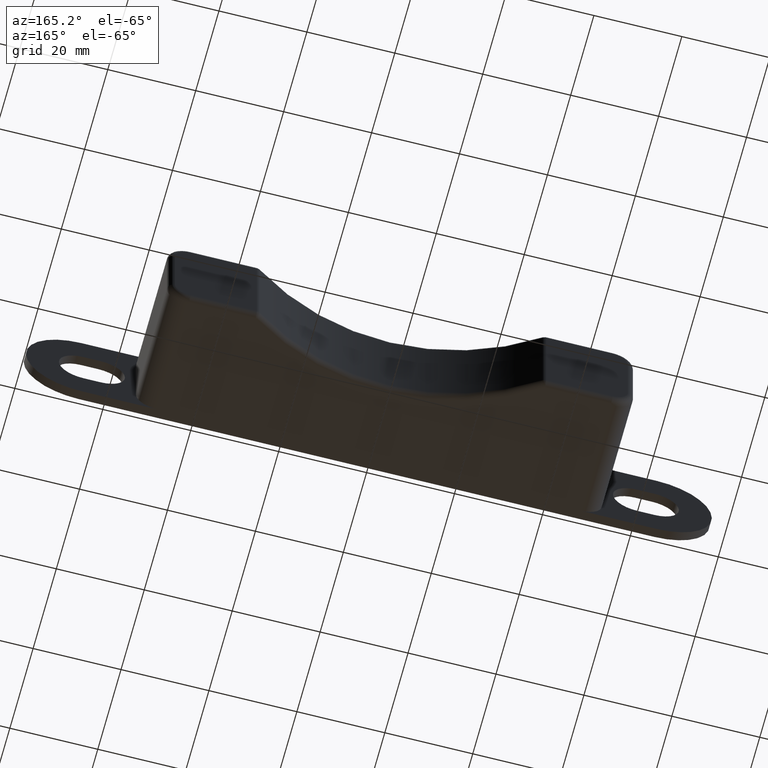
[diagram: clean part render]
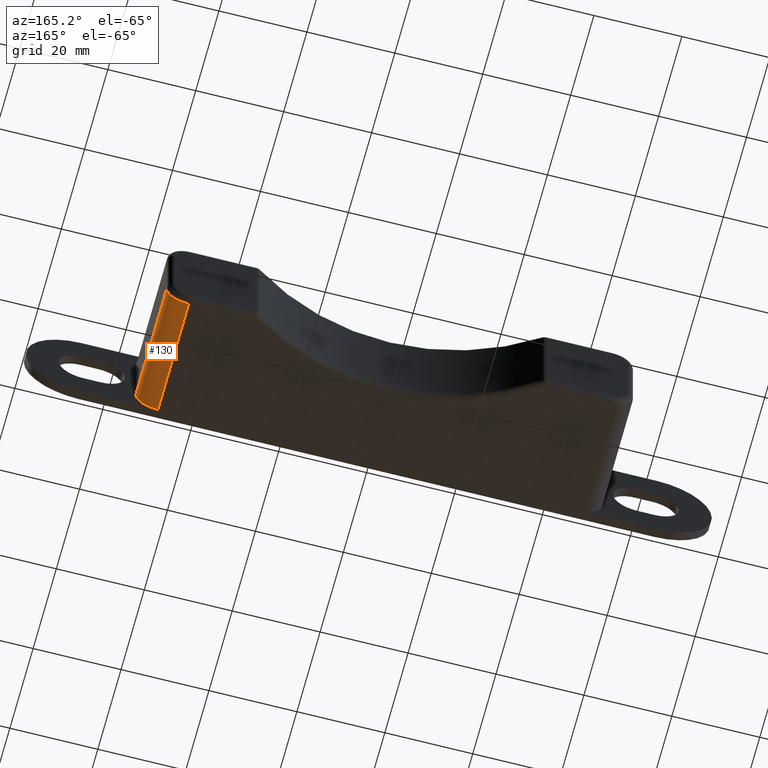
[diagram: same view with one face highlighted and labeled with its STEP entity id]
A machine part, auxiliary view. The second image highlights one B-rep face of the part: STEP entity #130.
In plain terms, the highlighted cylindrical surface (edge-blend (fillet) strip) has radius 5 mm, axis along (-0, -1, 0).
Its self-contained STEP definition (entity closure, byte-faithful):
#130 = ADVANCED_FACE( '', ( #884 ), #885, .T. );
#884 = FACE_OUTER_BOUND( '', #2192, .T. );
#885 = CYLINDRICAL_SURFACE( '', #2193, 5.00000000000000 );
#2192 = EDGE_LOOP( '', ( #4214, #4215, #4216, #4217 ) );
#2193 = AXIS2_PLACEMENT_3D( '', #4218, #4219, #4220 );
#4214 = ORIENTED_EDGE( '', *, *, #8773, .F. );
#4215 = ORIENTED_EDGE( '', *, *, #8872, .T. );
#4216 = ORIENTED_EDGE( '', *, *, #8789, .F. );
#4217 = ORIENTED_EDGE( '', *, *, #8795, .F. );
#4218 = CARTESIAN_POINT( '', ( 48.0000000000000, 1.99999999999999, -7.50000000000000 ) );
#4219 = DIRECTION( '', ( -6.93889390390723E-017, -1.00000000000000, 0.000000000000000 ) );
#4220 = DIRECTION( '', ( -1.00000000000000, 6.93889390390723E-017, 0.000000000000000 ) );
#8773 = EDGE_CURVE( '', #10845, #10847, #10848, .F. );
#8789 = EDGE_CURVE( '', #10873, #10874, #10875, .T. );
#8795 = EDGE_CURVE( '', #10847, #10873, #10884, .F. );
#8872 = EDGE_CURVE( '', #10845, #10874, #11010, .F. );
#10845 = VERTEX_POINT( '', #13928 );
#10847 = VERTEX_POINT( '', #13931 );
#10848 = LINE( '', #13932, #13933 );
#10873 = VERTEX_POINT( '', #13966 );
#10874 = VERTEX_POINT( '', #13967 );
#10875 = LINE( '', #13968, #13969 );
#10884 = CIRCLE( '', #13981, 5.00000000000000 );
#11010 = CIRCLE( '', #14153, 5.00000000000000 );
#13928 = CARTESIAN_POINT( '', ( 48.0000000000000, 28.5000000000000, -12.5000000000000 ) );
#13931 = CARTESIAN_POINT( '', ( 48.0000000000000, 2.00000000000000, -12.5000000000000 ) );
#13932 = CARTESIAN_POINT( '', ( 48.0000000000000, 77.6499999999999, -12.5000000000000 ) );
#13933 = VECTOR( '', #16849, 1000.00000000000 );
#13966 = CARTESIAN_POINT( '', ( 53.0000000000000, 2.00000000000000, -7.50000000000000 ) );
#13967 = CARTESIAN_POINT( '', ( 53.0000000000000, 28.5000000000000, -7.50000000000000 ) );
#13968 = CARTESIAN_POINT( '', ( 53.0000000000000, 1.99999999999999, -7.50000000000000 ) );
#13969 = VECTOR( '', #16879, 1000.00000000000 );
#13981 = AXIS2_PLACEMENT_3D( '', #16889, #16890, #16891 );
#14153 = AXIS2_PLACEMENT_3D( '', #17028, #17029, #17030 );
#16849 = DIRECTION( '', ( 6.93889390390723E-017, 1.00000000000000, 0.000000000000000 ) );
#16879 = DIRECTION( '', ( 6.93889390390723E-017, 1.00000000000000, 0.000000000000000 ) );
#16889 = CARTESIAN_POINT( '', ( 48.0000000000000, 2.00000000000000, -7.50000000000000 ) );
#16890 = DIRECTION( '', ( 0.000000000000000, 1.00000000000000, 0.000000000000000 ) );
#16891 = DIRECTION( '', ( 0.000000000000000, 0.000000000000000, 1.00000000000000 ) );
#17028 = CARTESIAN_POINT( '', ( 48.0000000000000, 28.5000000000000, -7.50000000000000 ) );
#17029 = DIRECTION( '', ( 0.000000000000000, 1.00000000000000, 0.000000000000000 ) );
#17030 = DIRECTION( '', ( 0.000000000000000, 0.000000000000000, 1.00000000000000 ) );